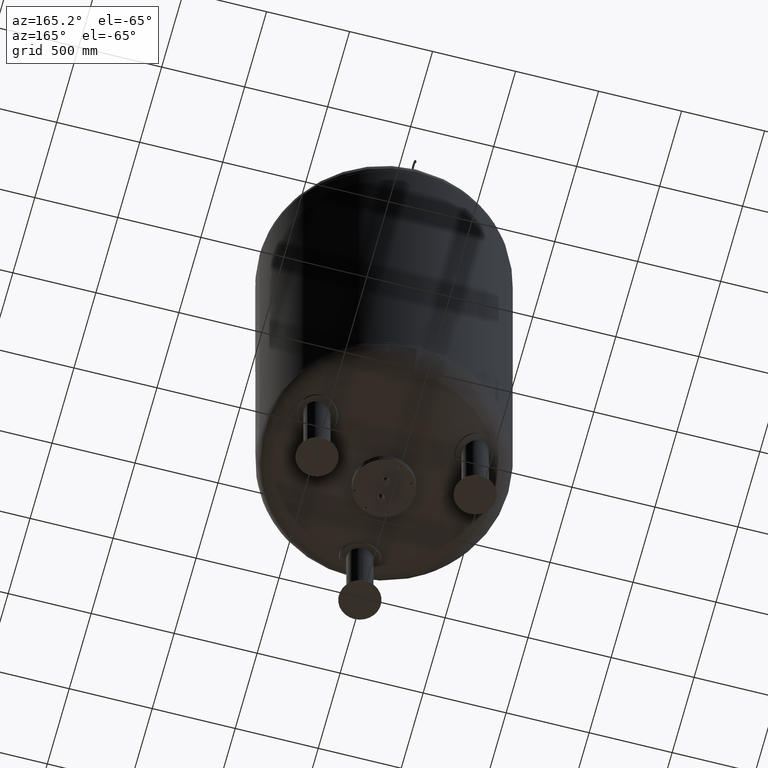
[diagram: clean part render]
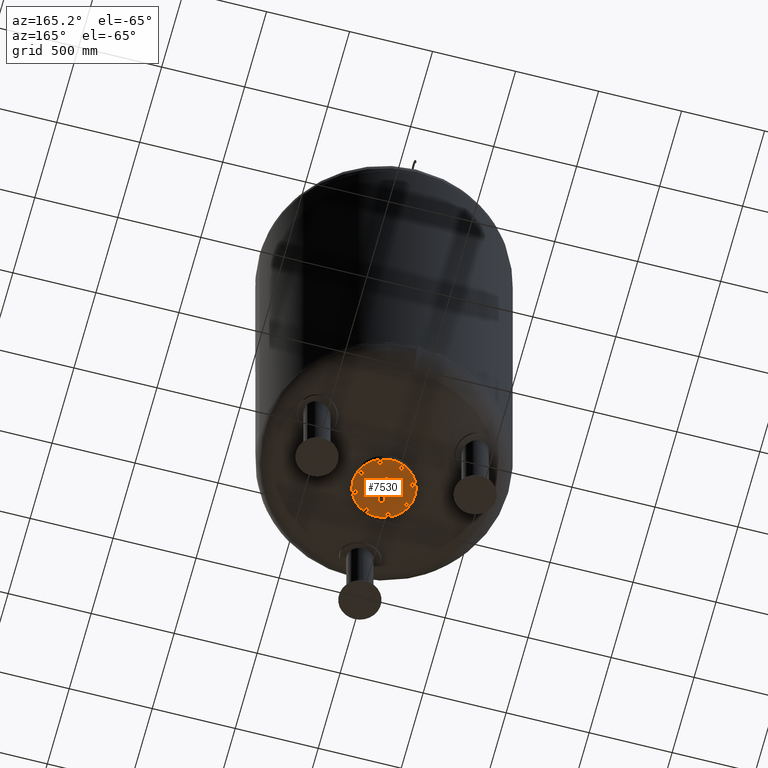
[diagram: same view with one face highlighted and labeled with its STEP entity id]
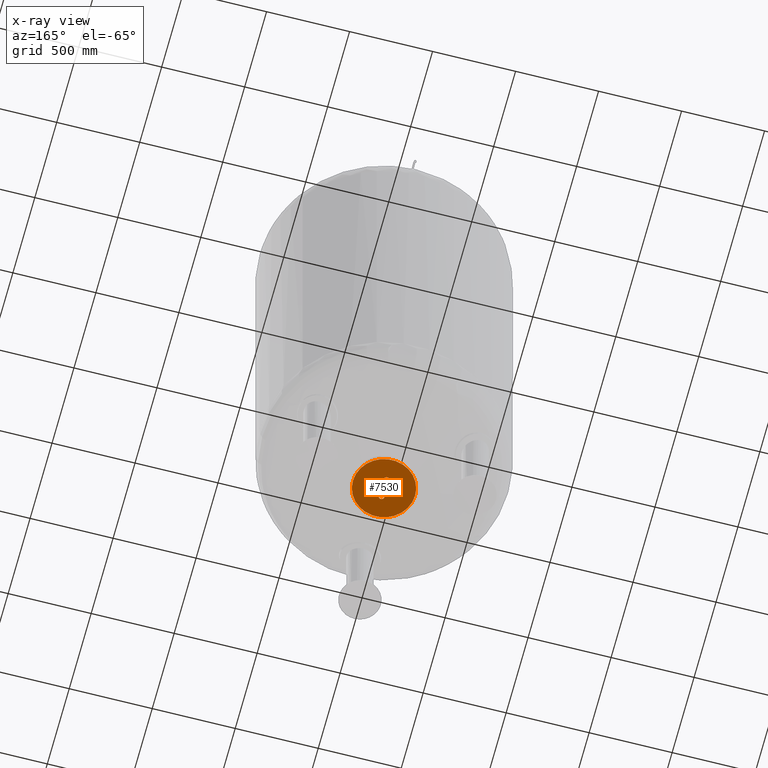
[diagram: x-ray of the same camera — body ghosted, the highlighted face saturated]
A machine part, auxiliary view. The second image highlights one B-rep face of the part: STEP entity #7530.
The next image is the same camera in x-ray: the body ghosted, the highlighted face saturated — about 0% of this face is hidden behind the body in this view.
In plain terms, the highlighted planar face has unit normal (0, 0, -1).
Its self-contained STEP definition (entity closure, byte-faithful):
#6762=CARTESIAN_POINT('',(187.500000000000000,0.0,414.0));
#6763=VERTEX_POINT('',#6762);
#6772=CARTESIAN_POINT('',(-187.500000000000000,2.296137E-014,414.0));
#6773=VERTEX_POINT('',#6772);
#6774=CARTESIAN_POINT('',(0.0,0.0,414.0));
#6775=DIRECTION('',(0.0,0.0,-1.0));
#6776=DIRECTION('',(1.0,0.0,0.0));
#6777=AXIS2_PLACEMENT_3D('',#6774,#6775,#6776);
#6778=CIRCLE('',#6777,187.500000000000000);
#6779=EDGE_CURVE('',#6773,#6763,#6778,.T.);
#6932=CARTESIAN_POINT('',(-16.850000000000012,-55.0,414.0));
#6933=VERTEX_POINT('',#6932);
#6949=CARTESIAN_POINT('',(16.849999999999991,-55.0,414.0));
#6950=VERTEX_POINT('',#6949);
#6957=CARTESIAN_POINT('',(-1.201816E-014,-55.0,414.0));
#6958=DIRECTION('',(0.0,0.0,1.0));
#6959=DIRECTION('',(-1.0,0.0,0.0));
#6960=AXIS2_PLACEMENT_3D('',#6957,#6958,#6959);
#6961=CIRCLE('',#6960,16.850000000000001);
#6962=EDGE_CURVE('',#6933,#6950,#6961,.T.);
#6974=CARTESIAN_POINT('',(-16.849999999999994,55.0,414.0));
#6975=VERTEX_POINT('',#6974);
#6991=CARTESIAN_POINT('',(16.850000000000009,55.0,414.0));
#6992=VERTEX_POINT('',#6991);
#6999=CARTESIAN_POINT('',(5.780099E-015,55.0,414.0));
#7000=DIRECTION('',(0.0,0.0,1.0));
#7001=DIRECTION('',(-1.0,0.0,0.0));
#7002=AXIS2_PLACEMENT_3D('',#6999,#7000,#7001);
#7003=CIRCLE('',#7002,16.850000000000001);
#7004=EDGE_CURVE('',#6975,#6992,#7003,.T.);
#7315=CARTESIAN_POINT('',(5.780099E-015,55.0,414.0));
#7316=DIRECTION('',(0.0,0.0,1.0));
#7317=DIRECTION('',(-1.0,0.0,0.0));
#7318=AXIS2_PLACEMENT_3D('',#7315,#7316,#7317);
#7319=CIRCLE('',#7318,16.850000000000001);
#7320=EDGE_CURVE('',#6992,#6975,#7319,.T.);
#7333=CARTESIAN_POINT('',(-1.201816E-014,-55.0,414.0));
#7334=DIRECTION('',(0.0,0.0,1.0));
#7335=DIRECTION('',(-1.0,0.0,0.0));
#7336=AXIS2_PLACEMENT_3D('',#7333,#7334,#7335);
#7337=CIRCLE('',#7336,16.850000000000001);
#7338=EDGE_CURVE('',#6950,#6933,#7337,.T.);
#7503=CARTESIAN_POINT('',(0.0,0.0,414.0));
#7504=DIRECTION('',(0.0,0.0,-1.0));
#7505=DIRECTION('',(1.0,0.0,0.0));
#7506=AXIS2_PLACEMENT_3D('',#7503,#7504,#7505);
#7507=CIRCLE('',#7506,187.500000000000000);
#7508=EDGE_CURVE('',#6763,#6773,#7507,.T.);
#7513=CARTESIAN_POINT('',(93.750000000000000,0.0,414.0));
#7514=DIRECTION('',(0.0,0.0,-1.0));
#7515=DIRECTION('',(0.0,1.0,0.0));
#7516=AXIS2_PLACEMENT_3D('',#7513,#7514,#7515);
#7517=PLANE('',#7516);
#7518=ORIENTED_EDGE('',*,*,#7508,.T.);
#7519=ORIENTED_EDGE('',*,*,#6779,.T.);
#7520=EDGE_LOOP('',(#7518,#7519));
#7521=FACE_OUTER_BOUND('',#7520,.T.);
#7522=ORIENTED_EDGE('',*,*,#7320,.T.);
#7523=ORIENTED_EDGE('',*,*,#7004,.T.);
#7524=EDGE_LOOP('',(#7522,#7523));
#7525=FACE_BOUND('',#7524,.T.);
#7526=ORIENTED_EDGE('',*,*,#7338,.T.);
#7527=ORIENTED_EDGE('',*,*,#6962,.T.);
#7528=EDGE_LOOP('',(#7526,#7527));
#7529=FACE_BOUND('',#7528,.T.);
#7530=ADVANCED_FACE('',(#7521,#7525,#7529),#7517,.T.);